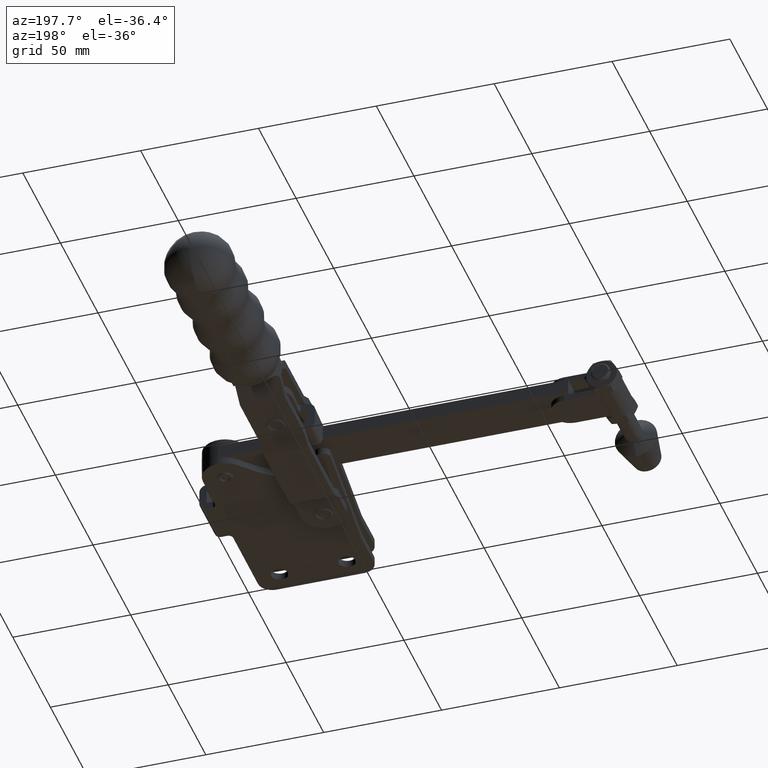
[diagram: clean part render]
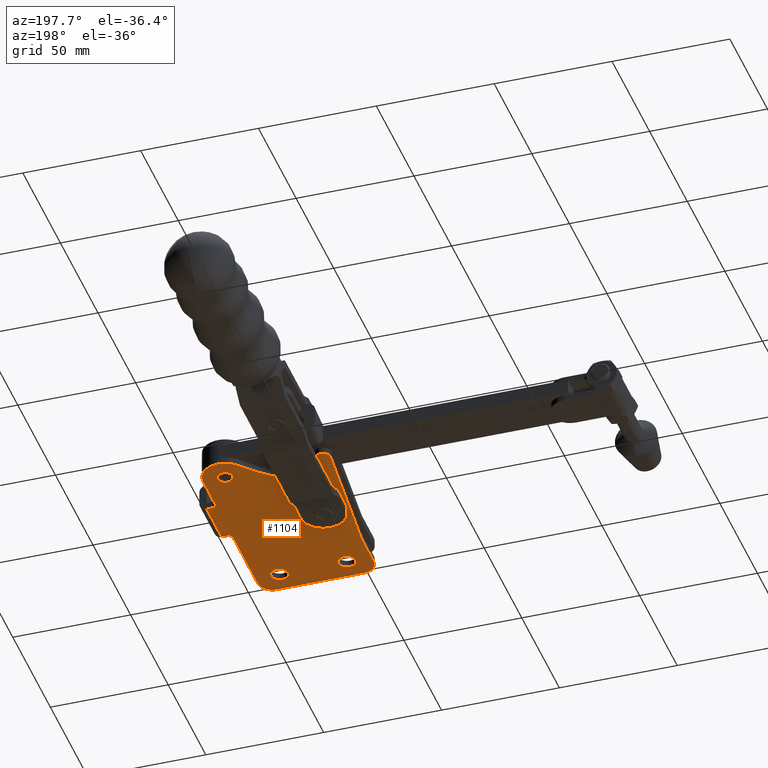
[diagram: same view with one face highlighted and labeled with its STEP entity id]
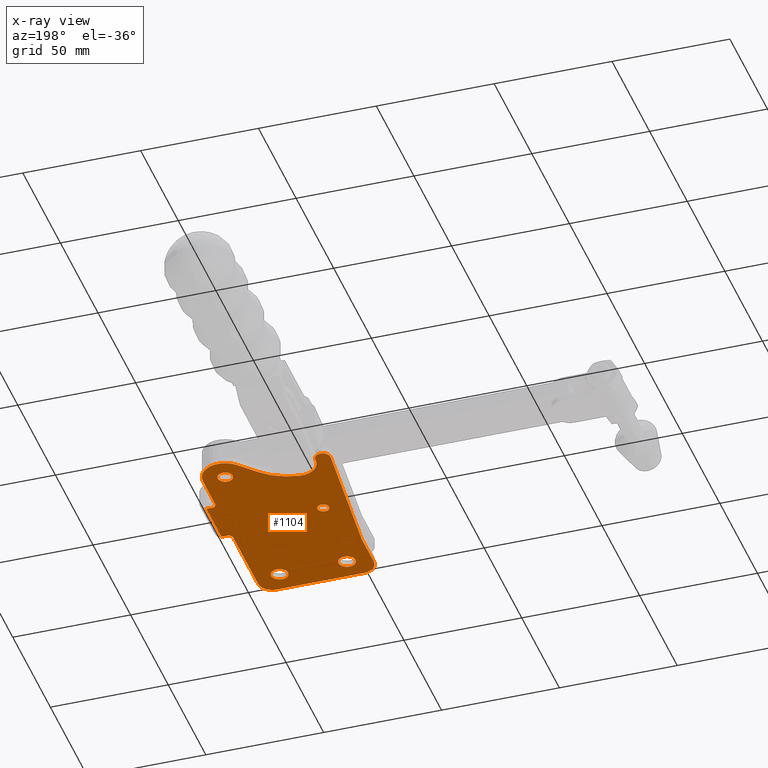
[diagram: x-ray of the same camera — body ghosted, the highlighted face saturated]
A machine part, auxiliary view. The second image highlights one B-rep face of the part: STEP entity #1104.
The next image is the same camera in x-ray: the body ghosted, the highlighted face saturated — about 0% of this face is hidden behind the body in this view.
In plain terms, the highlighted planar face has unit normal (0, -0, 1).
Its self-contained STEP definition (entity closure, byte-faithful):
#1 = DIRECTION ( 'NONE',  ( 1.000000000000000000, 0.0000000000000000000, 0.0000000000000000000 ) ) ;
#2 = DIRECTION ( 'NONE',  ( -3.673754092237317800E-017, 1.075437938200714600E-017, -1.000000000000000000 ) ) ;
#7 = CARTESIAN_POINT ( 'NONE',  ( 1.982139894682146000, 20.36000000000030100, -6.000000000001048100 ) ) ;
#13 = DIRECTION ( 'NONE',  ( 1.470015999505761900E-016, -1.075437938200713000E-017, 1.000000000000000000 ) ) ;
#16 = CARTESIAN_POINT ( 'NONE',  ( -40.89785875746165500, 28.62999999999998800, -6.000000000001035600 ) ) ;
#88 = CARTESIAN_POINT ( 'NONE',  ( -13.91785875746162800, -9.089999999999932400, -6.000000000001040100 ) ) ;
#103 = CIRCLE ( 'NONE', #6346, 2.399999999999999500 ) ;
#147 = DIRECTION ( 'NONE',  ( 3.673754092237317800E-017, -1.075437938200714600E-017, 1.000000000000000000 ) ) ;
#171 = CARTESIAN_POINT ( 'NONE',  ( -54.22017981570626000, 60.74110162320757000, -6.000000000001045400 ) ) ;
#281 = ORIENTED_EDGE ( 'NONE', *, *, #4893, .F. ) ;
#283 = AXIS2_PLACEMENT_3D ( 'NONE', #7, #2, #1 ) ;
#322 = AXIS2_PLACEMENT_3D ( 'NONE', #5005, #2643, #752 ) ;
#342 = CIRCLE ( 'NONE', #322, 3.200000000000001500 ) ;
#354 = VERTEX_POINT ( 'NONE', #1707 ) ;
#358 = AXIS2_PLACEMENT_3D ( 'NONE', #8542, #10226, #4293 ) ;
#366 = AXIS2_PLACEMENT_3D ( 'NONE', #9498, #7939, #6844 ) ;
#404 = DIRECTION ( 'NONE',  ( 1.000000000000000000, 0.0000000000000000000, -2.409338161078898200E-016 ) ) ;
#421 = ORIENTED_EDGE ( 'NONE', *, *, #4442, .F. ) ;
#433 = CARTESIAN_POINT ( 'NONE',  ( 1.982141242538589600, 22.36000000000008100, -6.000000000001047200 ) ) ;
#443 = EDGE_LOOP ( 'NONE', ( #4854, #7833, #6269, #8910, #7183, #5568, #10255, #6040, #421, #677, #6792, #9592, #281, #10210, #9020, #6240, #3143, #3375, #9045, #4217 ) ) ;
#467 = CIRCLE ( 'NONE', #366, 9.500000000000001800 ) ;
#476 = DIRECTION ( 'NONE',  ( 1.000000000000000000, 0.0000000000000000000, 0.0000000000000000000 ) ) ;
#482 = EDGE_CURVE ( 'NONE', #3777, #10251, #9849, .T. ) ;
#489 = DIRECTION ( 'NONE',  ( 1.000000000000000000, 0.0000000000000000000, 0.0000000000000000000 ) ) ;
#505 = CIRCLE ( 'NONE', #6282, 3.600000000000001000 ) ;
#525 = DIRECTION ( 'NONE',  ( 3.673754092237317800E-017, -1.075437938200714600E-017, 1.000000000000000000 ) ) ;
#534 = AXIS2_PLACEMENT_3D ( 'NONE', #3096, #525, #489 ) ;
#569 = CARTESIAN_POINT ( 'NONE',  ( -0.01785875746164455900, 44.35999999999986400, -6.000000000001048100 ) ) ;
#597 = EDGE_CURVE ( 'NONE', #2585, #2690, #1124, .T. ) ;
#601 = CARTESIAN_POINT ( 'NONE',  ( -6.017858757460972500, -18.63999999999992600, -6.000000000001048900 ) ) ;
#658 = VERTEX_POINT ( 'NONE', #88 ) ;
#677 = ORIENTED_EDGE ( 'NONE', *, *, #2174, .F. ) ;
#752 = DIRECTION ( 'NONE',  ( 1.000000000000000000, 0.0000000000000000000, 0.0000000000000000000 ) ) ;
#824 = CARTESIAN_POINT ( 'NONE',  ( -54.22785875746176000, 70.16000000000005300, -6.000000000001033000 ) ) ;
#886 = DIRECTION ( 'NONE',  ( -0.6800338855864067600, -0.7331806833613757600, -4.905189197006800800E-017 ) ) ;
#897 = CARTESIAN_POINT ( 'NONE',  ( -16.48307524939471200, 67.12032191307093900, -6.000000000001047200 ) ) ;
#929 = CARTESIAN_POINT ( 'NONE',  ( -38.91785875746163000, -9.089999999999935900, -6.000000000001036500 ) ) ;
#945 = VECTOR ( 'NONE', #8127, 1000.000000000000000 ) ;
#965 = AXIS2_PLACEMENT_3D ( 'NONE', #2960, #7516, #3585 ) ;
#991 = LINE ( 'NONE', #1337, #4836 ) ;
#1044 = EDGE_CURVE ( 'NONE', #3052, #6174, #8612, .T. ) ;
#1068 = CIRCLE ( 'NONE', #5229, 5.999999999999339200 ) ;
#1104 = ADVANCED_FACE ( 'NONE', ( #7552, #5642, #9562, #7289, #5201 ), #4056, .F. ) ;
#1124 = CIRCLE ( 'NONE', #2736, 25.00000000000001100 ) ;
#1189 = LINE ( 'NONE', #1994, #945 ) ;
#1272 = CIRCLE ( 'NONE', #7436, 3.599999999999999200 ) ;
#1278 = DIRECTION ( 'NONE',  ( -3.673754092237317800E-017, 1.075437938200714600E-017, -1.000000000000000000 ) ) ;
#1337 = CARTESIAN_POINT ( 'NONE',  ( 1.982141242538589600, 22.36000000000008100, -6.000000000001047200 ) ) ;
#1368 = LINE ( 'NONE', #897, #3160 ) ;
#1371 = ORIENTED_EDGE ( 'NONE', *, *, #4030, .T. ) ;
#1382 = EDGE_CURVE ( 'NONE', #9241, #4297, #991, .T. ) ;
#1431 = EDGE_CURVE ( 'NONE', #6174, #3052, #6622, .T. ) ;
#1451 = DIRECTION ( 'NONE',  ( 1.340117545285515200E-016, -1.000000000000000000, -1.075437938200714900E-017 ) ) ;
#1494 = ORIENTED_EDGE ( 'NONE', *, *, #7648, .T. ) ;
#1570 = VERTEX_POINT ( 'NONE', #601 ) ;
#1599 = ORIENTED_EDGE ( 'NONE', *, *, #3823, .T. ) ;
#1605 = AXIS2_PLACEMENT_3D ( 'NONE', #7241, #4827, #4134 ) ;
#1687 = VERTEX_POINT ( 'NONE', #6965 ) ;
#1707 = CARTESIAN_POINT ( 'NONE',  ( -47.83235678181266300, 61.02000000000005300, -6.000000000001045400 ) ) ;
#1708 = CIRCLE ( 'NONE', #283, 2.000000000000232700 ) ;
#1829 = AXIS2_PLACEMENT_3D ( 'NONE', #4227, #4302, #2392 ) ;
#1876 = AXIS2_PLACEMENT_3D ( 'NONE', #8591, #8580, #8564 ) ;
#1892 = CARTESIAN_POINT ( 'NONE',  ( 4.282141242538241200, 70.16000000000008200, -6.000000000001041800 ) ) ;
#1922 = DIRECTION ( 'NONE',  ( -3.673754092237317800E-017, 1.075437938200714600E-017, -1.000000000000000000 ) ) ;
#1994 = CARTESIAN_POINT ( 'NONE',  ( -49.21785875746163400, 3.564310292262853800, -6.000000000001047200 ) ) ;
#2040 = CARTESIAN_POINT ( 'NONE',  ( -35.31785875746162900, -9.089999999999935900, -6.000000000001037400 ) ) ;
#2148 = DIRECTION ( 'NONE',  ( 1.000000000000000000, 0.0000000000000000000, 0.0000000000000000000 ) ) ;
#2174 = EDGE_CURVE ( 'NONE', #8137, #8532, #6459, .T. ) ;
#2216 = LINE ( 'NONE', #8261, #6047 ) ;
#2230 = CARTESIAN_POINT ( 'NONE',  ( -43.29785875746165400, 28.62999999999998800, -6.000000000001035600 ) ) ;
#2277 = CARTESIAN_POINT ( 'NONE',  ( -43.21785875746140700, -12.63999999999970700, -6.000000000001047200 ) ) ;
#2361 = DIRECTION ( 'NONE',  ( 1.000000000000000000, 1.340117545285515200E-016, -1.031164854272214600E-016 ) ) ;
#2392 = DIRECTION ( 'NONE',  ( 0.9237280213470682200, 0.3830490080632376600, 0.0000000000000000000 ) ) ;
#2559 = VERTEX_POINT ( 'NONE', #3687 ) ;
#2585 = VERTEX_POINT ( 'NONE', #6473 ) ;
#2605 = LINE ( 'NONE', #1892, #6441 ) ;
#2610 = CARTESIAN_POINT ( 'NONE',  ( -42.51785875746162400, -9.089999999999935900, -6.000000000001035600 ) ) ;
#2643 = DIRECTION ( 'NONE',  ( 3.673754092237317800E-017, -1.075437938200714600E-017, 1.000000000000000000 ) ) ;
#2690 = VERTEX_POINT ( 'NONE', #4226 ) ;
#2699 = EDGE_CURVE ( 'NONE', #1687, #4297, #2605, .T. ) ;
#2736 = AXIS2_PLACEMENT_3D ( 'NONE', #8422, #1278, #10159 ) ;
#2802 = DIRECTION ( 'NONE',  ( 1.000000000000000000, 0.0000000000000000000, 0.0000000000000000000 ) ) ;
#2815 = DIRECTION ( 'NONE',  ( 3.673754092237317800E-017, -1.075437938200714600E-017, 1.000000000000000000 ) ) ;
#2826 = EDGE_CURVE ( 'NONE', #2559, #8103, #467, .T. ) ;
#2843 = CARTESIAN_POINT ( 'NONE',  ( -6.017858757460970800, -12.64000000000059000, -6.000000000001048900 ) ) ;
#2883 = AXIS2_PLACEMENT_3D ( 'NONE', #2277, #147, #2148 ) ;
#2893 = CIRCLE ( 'NONE', #1876, 3.200000000000001500 ) ;
#2960 = CARTESIAN_POINT ( 'NONE',  ( -9.517858757461652900, 60.66000000000006800, -5.999999999999956500 ) ) ;
#2975 = VERTEX_POINT ( 'NONE', #171 ) ;
#3052 = VERTEX_POINT ( 'NONE', #3500 ) ;
#3096 = CARTESIAN_POINT ( 'NONE',  ( -51.03235678181266600, 61.02000000000005300, -6.000000000001045400 ) ) ;
#3143 = ORIENTED_EDGE ( 'NONE', *, *, #3799, .F. ) ;
#3160 = VECTOR ( 'NONE', #886, 999.9999999999998900 ) ;
#3323 = AXIS2_PLACEMENT_3D ( 'NONE', #8189, #7454, #7385 ) ;
#3375 = ORIENTED_EDGE ( 'NONE', *, *, #4720, .F. ) ;
#3500 = CARTESIAN_POINT ( 'NONE',  ( -12.42760202470491400, 59.45339562460086600, -5.999999999999956500 ) ) ;
#3585 = DIRECTION ( 'NONE',  ( 0.9237280213470682200, 0.3830490080632376600, 0.0000000000000000000 ) ) ;
#3643 = DIRECTION ( 'NONE',  ( 1.470015999505761900E-016, -1.075437938200713000E-017, 1.000000000000000000 ) ) ;
#3665 = LINE ( 'NONE', #5622, #5477 ) ;
#3687 = CARTESIAN_POINT ( 'NONE',  ( -0.01785875746164889600, 60.66000000000006800, -6.000000000001048100 ) ) ;
#3777 = VERTEX_POINT ( 'NONE', #5051 ) ;
#3799 = EDGE_CURVE ( 'NONE', #9812, #2559, #2216, .T. ) ;
#3823 = EDGE_CURVE ( 'NONE', #9731, #3988, #1272, .T. ) ;
#3838 = EDGE_CURVE ( 'NONE', #8487, #658, #505, .T. ) ;
#3889 = EDGE_LOOP ( 'NONE', ( #1371, #10282 ) ) ;
#3983 = CARTESIAN_POINT ( 'NONE',  ( 1.982141242538134400, 44.35999999999986400, -6.000000000001047200 ) ) ;
#3988 = VERTEX_POINT ( 'NONE', #2610 ) ;
#4003 = VERTEX_POINT ( 'NONE', #5218 ) ;
#4030 = EDGE_CURVE ( 'NONE', #6111, #7334, #4807, .T. ) ;
#4037 = CARTESIAN_POINT ( 'NONE',  ( -38.49785875746165700, 28.62999999999998800, -6.000000000001035600 ) ) ;
#4056 = PLANE ( 'NONE',  #1605 ) ;
#4134 = DIRECTION ( 'NONE',  ( 1.000000000000000000, 1.340117545285515200E-016, -1.470015999505761900E-016 ) ) ;
#4217 = ORIENTED_EDGE ( 'NONE', *, *, #2699, .T. ) ;
#4221 = DIRECTION ( 'NONE',  ( 1.000000000000000000, 0.0000000000000000000, -2.409338161078899200E-016 ) ) ;
#4226 = CARTESIAN_POINT ( 'NONE',  ( -38.73296894480213100, 52.39787972466058400, -6.000000000001046300 ) ) ;
#4227 = CARTESIAN_POINT ( 'NONE',  ( -9.517858757461652900, 60.66000000000006800, -5.999999999999956500 ) ) ;
#4235 = DIRECTION ( 'NONE',  ( 1.470015999505761900E-016, -1.075437938200713000E-017, 1.000000000000000000 ) ) ;
#4237 = CARTESIAN_POINT ( 'NONE',  ( -38.91785875746163000, -9.089999999999935900, -6.000000000001036500 ) ) ;
#4293 = DIRECTION ( 'NONE',  ( 1.000000000000000000, 0.0000000000000000000, 0.0000000000000000000 ) ) ;
#4297 = VERTEX_POINT ( 'NONE', #9820 ) ;
#4302 = DIRECTION ( 'NONE',  ( 3.673754092237314800E-017, -1.075437938200715800E-017, 1.000000000000000000 ) ) ;
#4428 = VECTOR ( 'NONE', #5982, 1000.000000000000000 ) ;
#4442 = EDGE_CURVE ( 'NONE', #8532, #2975, #342, .T. ) ;
#4526 = CIRCLE ( 'NONE', #3323, 8.300000000000737900 ) ;
#4571 = EDGE_CURVE ( 'NONE', #2975, #5304, #1189, .T. ) ;
#4717 = CARTESIAN_POINT ( 'NONE',  ( -49.21785875746163400, 3.564310292262853800, -6.000000000001047200 ) ) ;
#4720 = EDGE_CURVE ( 'NONE', #8235, #9812, #9509, .T. ) ;
#4771 = DIRECTION ( 'NONE',  ( 1.340117545285515200E-016, -1.000000000000000000, -1.075437938200714900E-017 ) ) ;
#4774 = CARTESIAN_POINT ( 'NONE',  ( -0.01785875746163068100, -12.64000000000058900, -6.000000000001048900 ) ) ;
#4799 = CIRCLE ( 'NONE', #8683, 3.599999999999999200 ) ;
#4807 = CIRCLE ( 'NONE', #358, 2.399999999999999500 ) ;
#4827 = DIRECTION ( 'NONE',  ( 1.470015999505761900E-016, -1.075437938200712900E-017, 1.000000000000000000 ) ) ;
#4836 = VECTOR ( 'NONE', #2361, 1000.000000000000000 ) ;
#4854 = ORIENTED_EDGE ( 'NONE', *, *, #1382, .F. ) ;
#4893 = EDGE_CURVE ( 'NONE', #2690, #4003, #4526, .T. ) ;
#4903 = DIRECTION ( 'NONE',  ( -1.000000000000000000, -1.340117545285515200E-016, 1.470015999505761700E-016 ) ) ;
#5005 = CARTESIAN_POINT ( 'NONE',  ( -51.03235678181266600, 61.02000000000005300, -6.000000000001045400 ) ) ;
#5051 = CARTESIAN_POINT ( 'NONE',  ( -49.21785875746163400, -12.63999999999970700, -6.000000000001046300 ) ) ;
#5109 = EDGE_CURVE ( 'NONE', #1570, #10251, #3665, .T. ) ;
#5128 = CARTESIAN_POINT ( 'NONE',  ( -54.22785875746176000, 60.85039126312972300, -6.000000000001045400 ) ) ;
#5201 = FACE_OUTER_BOUND ( 'NONE', #443, .T. ) ;
#5218 = CARTESIAN_POINT ( 'NONE',  ( -47.83393607385947600, 60.91947649560324900, -6.000000000001045400 ) ) ;
#5229 = AXIS2_PLACEMENT_3D ( 'NONE', #2843, #2815, #2802 ) ;
#5280 = CARTESIAN_POINT ( 'NONE',  ( -6.717858757461626400, -9.089999999999932400, -6.000000000001041800 ) ) ;
#5304 = VERTEX_POINT ( 'NONE', #6429 ) ;
#5477 = VECTOR ( 'NONE', #4903, 1000.000000000000000 ) ;
#5568 = ORIENTED_EDGE ( 'NONE', *, *, #482, .F. ) ;
#5622 = CARTESIAN_POINT ( 'NONE',  ( 4.282141242538252800, -18.63999999999992600, -6.000000000001042700 ) ) ;
#5642 = FACE_BOUND ( 'NONE', #6130, .T. ) ;
#5976 = DIRECTION ( 'NONE',  ( 1.470015999505761900E-016, -1.075437938200713000E-017, 1.000000000000000000 ) ) ;
#5982 = DIRECTION ( 'NONE',  ( 1.340117545285515200E-016, -1.000000000000000000, -1.075437938200714900E-017 ) ) ;
#6040 = ORIENTED_EDGE ( 'NONE', *, *, #4571, .F. ) ;
#6047 = VECTOR ( 'NONE', #9667, 1000.000000000000000 ) ;
#6111 = VERTEX_POINT ( 'NONE', #4037 ) ;
#6119 = EDGE_CURVE ( 'NONE', #6498, #7077, #8714, .T. ) ;
#6130 = EDGE_LOOP ( 'NONE', ( #7439, #1494 ) ) ;
#6174 = VERTEX_POINT ( 'NONE', #8528 ) ;
#6240 = ORIENTED_EDGE ( 'NONE', *, *, #2826, .F. ) ;
#6269 = ORIENTED_EDGE ( 'NONE', *, *, #6119, .F. ) ;
#6282 = AXIS2_PLACEMENT_3D ( 'NONE', #7697, #3643, #404 ) ;
#6296 = AXIS2_PLACEMENT_3D ( 'NONE', #10129, #10126, #10105 ) ;
#6346 = AXIS2_PLACEMENT_3D ( 'NONE', #16, #13, #476 ) ;
#6349 = CARTESIAN_POINT ( 'NONE',  ( 1.982141242538135300, 42.36000000000008500, -6.000000000001047200 ) ) ;
#6429 = CARTESIAN_POINT ( 'NONE',  ( -49.21785875746163400, 3.564310292262853800, -6.000000000001047200 ) ) ;
#6441 = VECTOR ( 'NONE', #1451, 1000.000000000000000 ) ;
#6459 = LINE ( 'NONE', #824, #4428 ) ;
#6464 = VECTOR ( 'NONE', #9069, 1000.000000000000000 ) ;
#6473 = CARTESIAN_POINT ( 'NONE',  ( -22.82834167342728500, 60.27915286033986300, -6.000000000001047200 ) ) ;
#6498 = VERTEX_POINT ( 'NONE', #4774 ) ;
#6545 = EDGE_CURVE ( 'NONE', #3988, #9731, #4799, .T. ) ;
#6611 = VECTOR ( 'NONE', #8987, 1000.000000000000000 ) ;
#6622 = CIRCLE ( 'NONE', #965, 3.149999999999998100 ) ;
#6667 = CIRCLE ( 'NONE', #6296, 3.600000000000001000 ) ;
#6716 = EDGE_CURVE ( 'NONE', #1570, #6498, #1068, .T. ) ;
#6723 = CARTESIAN_POINT ( 'NONE',  ( -54.22785875746176000, 61.18960873687038300, -6.000000000001045400 ) ) ;
#6792 = ORIENTED_EDGE ( 'NONE', *, *, #10203, .F. ) ;
#6844 = DIRECTION ( 'NONE',  ( 1.000000000000000000, 0.0000000000000000000, 0.0000000000000000000 ) ) ;
#6883 = LINE ( 'NONE', #9018, #6611 ) ;
#6962 = CARTESIAN_POINT ( 'NONE',  ( -16.48307524939471200, 67.12032191307093900, -6.000000000001047200 ) ) ;
#6965 = CARTESIAN_POINT ( 'NONE',  ( 4.282141242538244800, 42.36000000000008500, -6.000000000001047200 ) ) ;
#7011 = EDGE_CURVE ( 'NONE', #7334, #6111, #103, .T. ) ;
#7077 = VERTEX_POINT ( 'NONE', #8940 ) ;
#7183 = ORIENTED_EDGE ( 'NONE', *, *, #5109, .T. ) ;
#7241 = CARTESIAN_POINT ( 'NONE',  ( 4.282141242538241200, 70.16000000000008200, -6.000000000001041800 ) ) ;
#7289 = FACE_BOUND ( 'NONE', #9317, .T. ) ;
#7294 = ORIENTED_EDGE ( 'NONE', *, *, #6545, .T. ) ;
#7334 = VERTEX_POINT ( 'NONE', #2230 ) ;
#7385 = DIRECTION ( 'NONE',  ( 1.000000000000000000, 0.0000000000000000000, 0.0000000000000000000 ) ) ;
#7436 = AXIS2_PLACEMENT_3D ( 'NONE', #929, #5976, #7503 ) ;
#7439 = ORIENTED_EDGE ( 'NONE', *, *, #3838, .T. ) ;
#7454 = DIRECTION ( 'NONE',  ( -3.673754092237317800E-017, 1.075437938200714600E-017, -1.000000000000000000 ) ) ;
#7503 = DIRECTION ( 'NONE',  ( 1.000000000000000000, 0.0000000000000000000, -2.409338161078899200E-016 ) ) ;
#7516 = DIRECTION ( 'NONE',  ( 3.673754092237314800E-017, -1.075437938200715800E-017, 1.000000000000000000 ) ) ;
#7552 = FACE_BOUND ( 'NONE', #8373, .T. ) ;
#7648 = EDGE_CURVE ( 'NONE', #658, #8487, #6667, .T. ) ;
#7691 = VECTOR ( 'NONE', #4771, 1000.000000000000000 ) ;
#7697 = CARTESIAN_POINT ( 'NONE',  ( -10.31785875746162700, -9.089999999999932400, -6.000000000001040900 ) ) ;
#7833 = ORIENTED_EDGE ( 'NONE', *, *, #9295, .F. ) ;
#7939 = DIRECTION ( 'NONE',  ( 3.673754092237317800E-017, -1.075437938200714600E-017, 1.000000000000000000 ) ) ;
#8103 = VERTEX_POINT ( 'NONE', #6962 ) ;
#8127 = DIRECTION ( 'NONE',  ( 0.08715574274765179600, -0.9961946980917461000, -2.054943314040424100E-017 ) ) ;
#8137 = VERTEX_POINT ( 'NONE', #6723 ) ;
#8189 = CARTESIAN_POINT ( 'NONE',  ( -39.53803236260517200, 60.65874365607402300, -6.000000000001046300 ) ) ;
#8220 = ORIENTED_EDGE ( 'NONE', *, *, #1044, .T. ) ;
#8235 = VERTEX_POINT ( 'NONE', #6349 ) ;
#8261 = CARTESIAN_POINT ( 'NONE',  ( -0.01785875746164889600, 60.66000000000006800, -6.000000000001048100 ) ) ;
#8369 = CARTESIAN_POINT ( 'NONE',  ( -43.21785875746140700, -18.63999999999993300, -6.000000000001036500 ) ) ;
#8373 = EDGE_LOOP ( 'NONE', ( #1599, #7294 ) ) ;
#8422 = CARTESIAN_POINT ( 'NONE',  ( -41.15785875746166100, 77.28000000000007200, -6.000000000001046300 ) ) ;
#8487 = VERTEX_POINT ( 'NONE', #5280 ) ;
#8528 = CARTESIAN_POINT ( 'NONE',  ( -6.608115490218390100, 61.86660437539927000, -5.999999999999956500 ) ) ;
#8532 = VERTEX_POINT ( 'NONE', #5128 ) ;
#8542 = CARTESIAN_POINT ( 'NONE',  ( -40.89785875746165500, 28.62999999999998800, -6.000000000001035600 ) ) ;
#8564 = DIRECTION ( 'NONE',  ( 1.000000000000000000, 0.0000000000000000000, 0.0000000000000000000 ) ) ;
#8580 = DIRECTION ( 'NONE',  ( 3.673754092237317800E-017, -1.075437938200714600E-017, 1.000000000000000000 ) ) ;
#8591 = CARTESIAN_POINT ( 'NONE',  ( -51.03235678181266600, 61.02000000000005300, -6.000000000001045400 ) ) ;
#8612 = CIRCLE ( 'NONE', #1829, 3.149999999999998100 ) ;
#8683 = AXIS2_PLACEMENT_3D ( 'NONE', #4237, #4235, #4221 ) ;
#8714 = LINE ( 'NONE', #9124, #6464 ) ;
#8910 = ORIENTED_EDGE ( 'NONE', *, *, #6716, .F. ) ;
#8940 = CARTESIAN_POINT ( 'NONE',  ( -0.01785875746163675300, 20.36232194400971500, -6.000000000001048900 ) ) ;
#8964 = DIRECTION ( 'NONE',  ( 1.000000000000000000, 0.0000000000000000000, 0.0000000000000000000 ) ) ;
#8987 = DIRECTION ( 'NONE',  ( -1.000000000000000000, -1.340117545285515200E-016, 1.031164854272075500E-016 ) ) ;
#9018 = CARTESIAN_POINT ( 'NONE',  ( 1.982141242538135300, 42.36000000000008500, -6.000000000001047200 ) ) ;
#9020 = ORIENTED_EDGE ( 'NONE', *, *, #9132, .F. ) ;
#9024 = CIRCLE ( 'NONE', #534, 3.200000000000001500 ) ;
#9045 = ORIENTED_EDGE ( 'NONE', *, *, #10127, .F. ) ;
#9069 = DIRECTION ( 'NONE',  ( -1.340117545285515200E-016, 1.000000000000000000, 1.075437938200714900E-017 ) ) ;
#9124 = CARTESIAN_POINT ( 'NONE',  ( -0.01785875746163068100, -12.64000000000058900, -6.000000000001048900 ) ) ;
#9132 = EDGE_CURVE ( 'NONE', #8103, #2585, #1368, .T. ) ;
#9241 = VERTEX_POINT ( 'NONE', #433 ) ;
#9295 = EDGE_CURVE ( 'NONE', #7077, #9241, #1708, .T. ) ;
#9317 = EDGE_LOOP ( 'NONE', ( #9323, #8220 ) ) ;
#9323 = ORIENTED_EDGE ( 'NONE', *, *, #1431, .T. ) ;
#9498 = CARTESIAN_POINT ( 'NONE',  ( -9.517858757461645800, 60.66000000000006800, -6.000000000001047200 ) ) ;
#9509 = CIRCLE ( 'NONE', #10233, 1.999999999999778800 ) ;
#9562 = FACE_BOUND ( 'NONE', #3889, .T. ) ;
#9592 = ORIENTED_EDGE ( 'NONE', *, *, #9799, .F. ) ;
#9604 = EDGE_CURVE ( 'NONE', #5304, #3777, #9712, .T. ) ;
#9667 = DIRECTION ( 'NONE',  ( -2.936488842196667300E-016, 1.000000000000000000, 1.075437938200714100E-017 ) ) ;
#9712 = LINE ( 'NONE', #4717, #7691 ) ;
#9731 = VERTEX_POINT ( 'NONE', #2040 ) ;
#9799 = EDGE_CURVE ( 'NONE', #4003, #354, #9024, .T. ) ;
#9812 = VERTEX_POINT ( 'NONE', #569 ) ;
#9820 = CARTESIAN_POINT ( 'NONE',  ( 4.282141242538247500, 22.36000000000008100, -6.000000000001047200 ) ) ;
#9849 = CIRCLE ( 'NONE', #2883, 6.000000000000227400 ) ;
#10105 = DIRECTION ( 'NONE',  ( 1.000000000000000000, 0.0000000000000000000, -2.409338161078898200E-016 ) ) ;
#10126 = DIRECTION ( 'NONE',  ( 1.470015999505761900E-016, -1.075437938200713000E-017, 1.000000000000000000 ) ) ;
#10127 = EDGE_CURVE ( 'NONE', #1687, #8235, #6883, .T. ) ;
#10129 = CARTESIAN_POINT ( 'NONE',  ( -10.31785875746162700, -9.089999999999932400, -6.000000000001040900 ) ) ;
#10159 = DIRECTION ( 'NONE',  ( 1.000000000000000000, 0.0000000000000000000, -3.469446951953613000E-017 ) ) ;
#10203 = EDGE_CURVE ( 'NONE', #354, #8137, #2893, .T. ) ;
#10210 = ORIENTED_EDGE ( 'NONE', *, *, #597, .F. ) ;
#10226 = DIRECTION ( 'NONE',  ( 1.470015999505761900E-016, -1.075437938200713000E-017, 1.000000000000000000 ) ) ;
#10233 = AXIS2_PLACEMENT_3D ( 'NONE', #3983, #1922, #8964 ) ;
#10251 = VERTEX_POINT ( 'NONE', #8369 ) ;
#10255 = ORIENTED_EDGE ( 'NONE', *, *, #9604, .F. ) ;
#10282 = ORIENTED_EDGE ( 'NONE', *, *, #7011, .T. ) ;